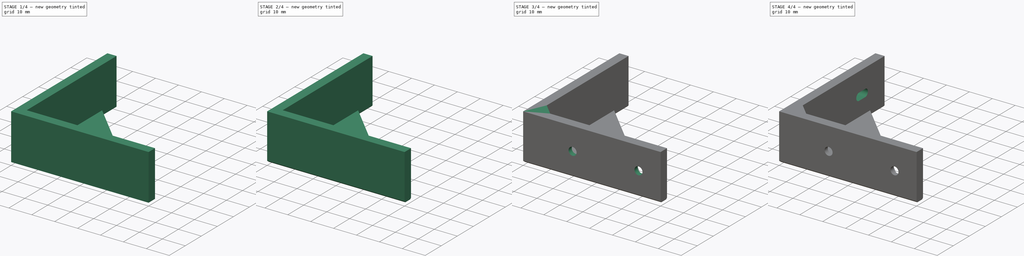
[diagram: build sequence overview — one tinted view per stage of 4, left to right]
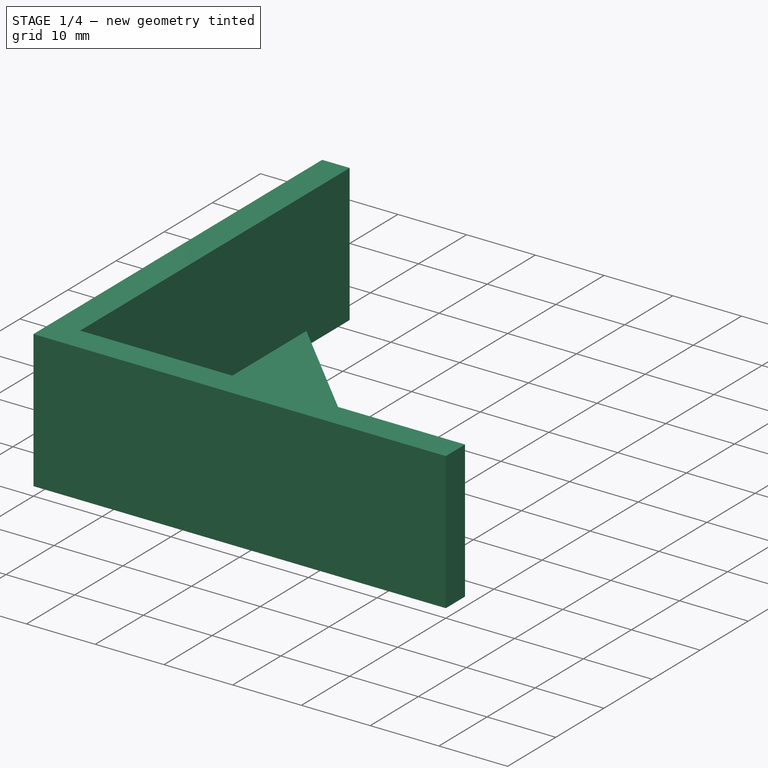
[diagram: stage 1 of 4 — iso view after this stage's code; geometry added in this stage tinted green]
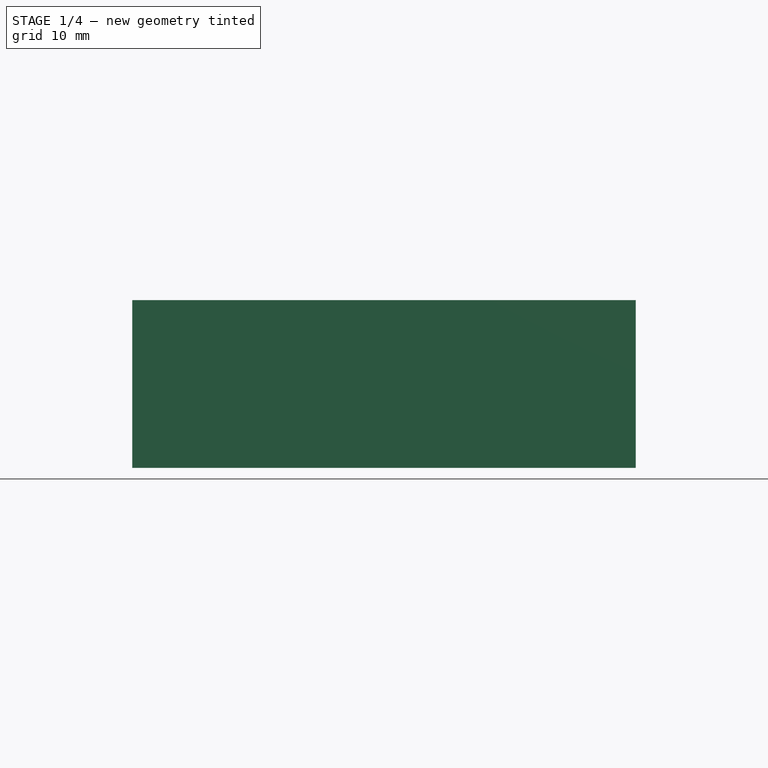
[diagram: stage 1 of 4 — front view after this stage's code; geometry added in this stage tinted green]
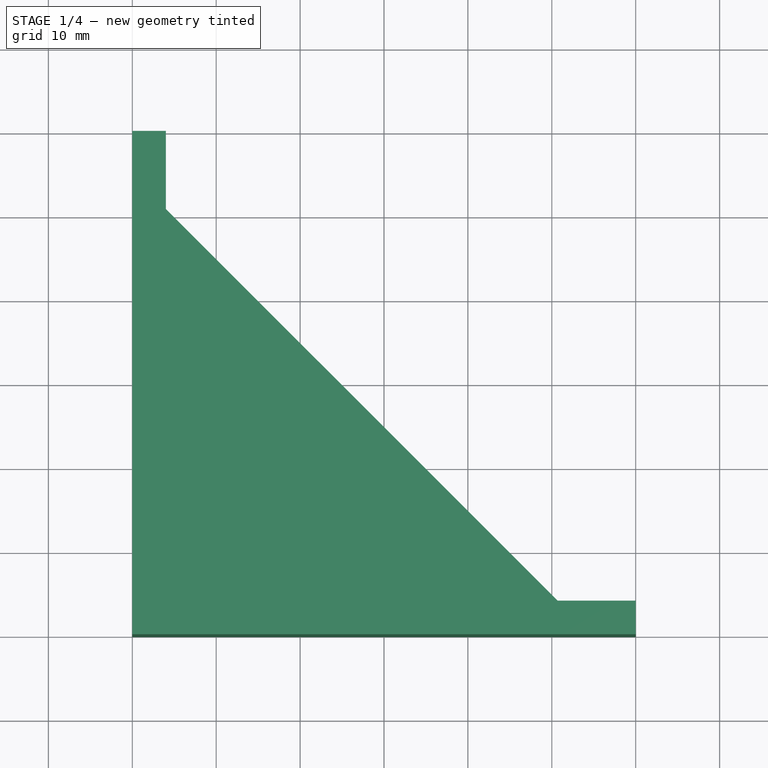
[diagram: stage 1 of 4 — top view after this stage's code; geometry added in this stage tinted green]
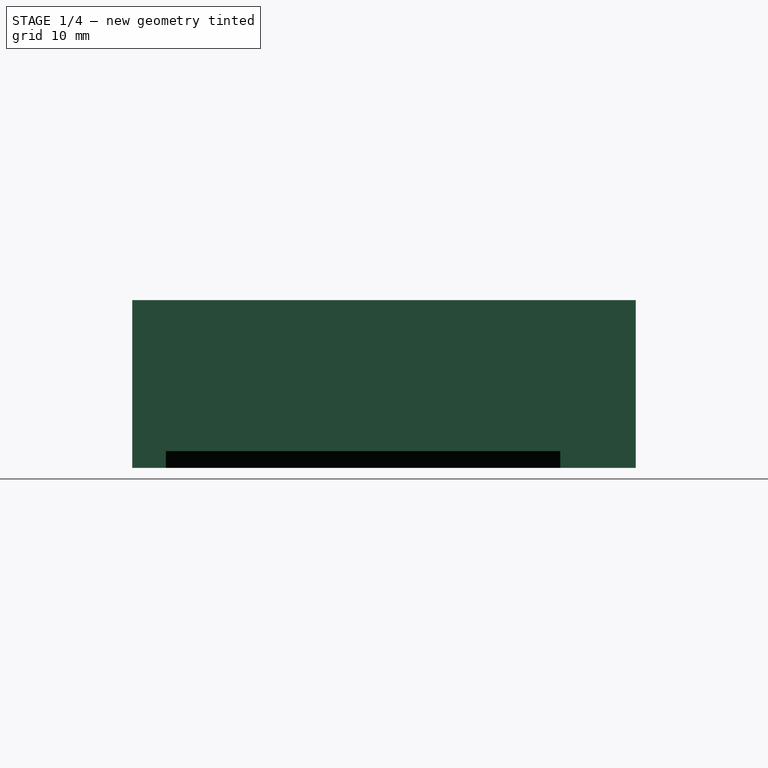
[diagram: stage 1 of 4 — right view after this stage's code; geometry added in this stage tinted green]
FCSTD DOCUMENT  (FreeCAD 0.19R24291 (Git))
Label: z-corner-brace
License: All rights reserved
LicenseURL: http://en.wikipedia.org/wiki/All_rights_reserved
objects: PartDesign::Chamfer×6, Sketcher::SketchObject×4, PartDesign::Pad×2, PartDesign::Hole×1, PartDesign::Pocket×1, PartDesign::Body×1, App::Part×1
note: 25 computed .brp shape members not serialized (recipe doc carries the construction recipe); baked Part::Feature solids carry a one-line shape summary decoded from their .brp

FEATURE [Sketcher::SketchObject] Sketch
  FullyConstrained = true
  MapMode = 5
  Support = -> [XY_Plane001]
  sketch-geometry (6):
    g0: LineSegment StartX=0 StartY=0 StartZ=0 EndX=0 EndY=60 EndZ=0
    g1: LineSegment StartX=0 StartY=0 StartZ=0 EndX=60 EndY=0 EndZ=0
    g2: LineSegment StartX=60 StartY=0 StartZ=0 EndX=60 EndY=4 EndZ=0
    g3: LineSegment StartX=60 StartY=4 StartZ=0 EndX=4 EndY=4 EndZ=0
    g4: LineSegment StartX=4 StartY=4 StartZ=0 EndX=4 EndY=60 EndZ=0
    g5: LineSegment StartX=0 StartY=60 StartZ=0 EndX=4 EndY=60 EndZ=0
  constraints (17):
    c: Coincident(g0,g-1)
    c: PointOnObject(g0,g-2)
    c: Coincident(g1,g0)
    c: PointOnObject(g1,g-1)
    c: Coincident(g2,g1)
    c: Vertical(g2)
    c: Coincident(g3,g2)
    c: Horizontal(g3)
    c: Coincident(g4,g3)
    c: Vertical(g4)
    c: Coincident(g5,g0)
    c: Horizontal(g5)
    c: Distance(g2) = 4
    c: Distance(g5) = 4
    c: Coincident(g4,g5)
    c: Distance(g1) = 60
    c: Distance(g0) = 60
FEATURE [PartDesign::Pad] Pad
  Direction = (1,1,1)
  Length = 20
  Length2 = 100
  Profile = -> Sketch
  Type = 0
FEATURE [Sketcher::SketchObject] Sketch001
  FullyConstrained = true
  MapMode = 5
  Placement = pos=(0,0,0) rot=(1,0,0;3.14159rad)
  Support = -> [Pad]
  sketch-geometry (3):
    g0: LineSegment StartX=0 StartY=0 StartZ=0 EndX=0 EndY=-55 EndZ=0
    g1: LineSegment StartX=0 StartY=0 StartZ=0 EndX=55 EndY=0 EndZ=0
    g2: LineSegment StartX=55 StartY=0 StartZ=0 EndX=0 EndY=-55 EndZ=0
  constraints (8):
    c: Vertical(g0)
    c: Horizontal(g1)
    c: Coincident(g0,g2)
    c: Coincident(g1,g2)
    c: Coincident(g1,g0)
    c: Coincident(g0,g-1)
    c: Distance(g1) = 55
    c: Distance(g0) = 55
FEATURE [PartDesign::Pad] Pad001
  BaseFeature = -> Pad
  Direction = (1,1,1)
  Length = 2
  Length2 = 100
  Profile = -> Sketch001
  Reversed = true
  Type = 0
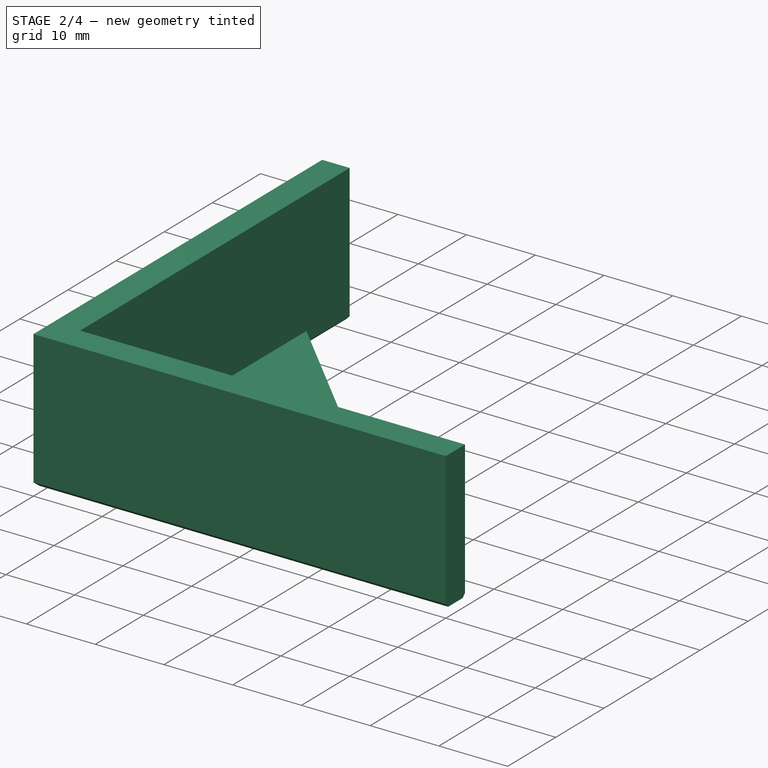
[diagram: stage 2 of 4 — iso view after this stage's code; geometry added in this stage tinted green]
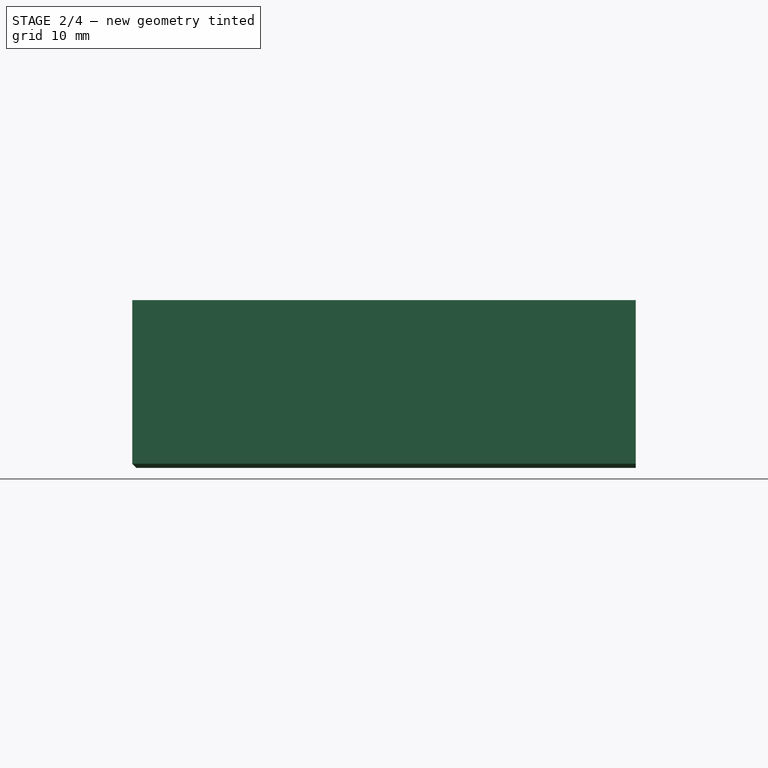
[diagram: stage 2 of 4 — front view after this stage's code; geometry added in this stage tinted green]
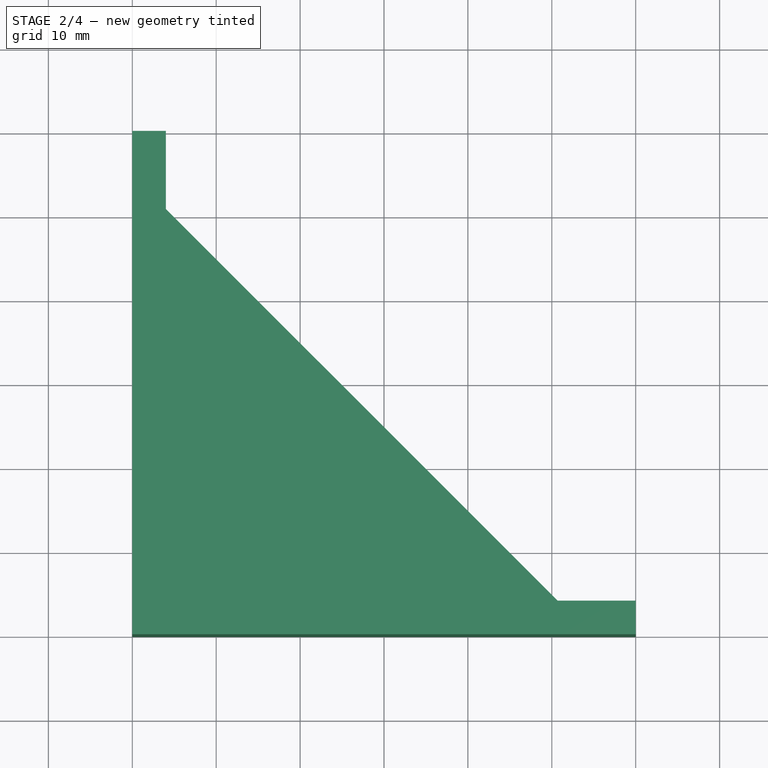
[diagram: stage 2 of 4 — top view after this stage's code; geometry added in this stage tinted green]
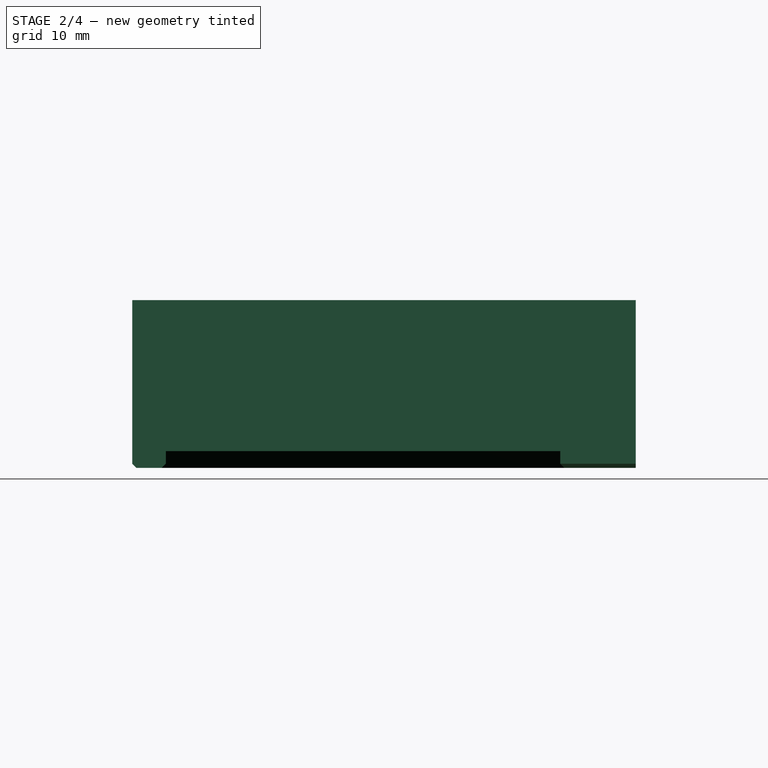
[diagram: stage 2 of 4 — right view after this stage's code; geometry added in this stage tinted green]
FEATURE [PartDesign::Chamfer] Chamfer
  Angle = 45
  Base = -> Pad001 [Edge5,Edge16]
  BaseFeature = -> Pad001
  ChamferType = 0
  FlipDirection = false
  Size = 0.5
  Size2 = 1
  SupportTransform = false
FEATURE [PartDesign::Chamfer] Chamfer001
  Angle = 45
  Base = -> Chamfer [Edge1,Edge13]
  BaseFeature = -> Chamfer
  ChamferType = 0
  FlipDirection = false
  Size = 0.5
  Size2 = 1
  SupportTransform = false
FEATURE [PartDesign::Chamfer] Chamfer002
  Angle = 45
  Base = -> Chamfer001 [Edge31,Edge46]
  BaseFeature = -> Chamfer001
  ChamferType = 0
  FlipDirection = false
  Size = 0.5
  Size2 = 1
  SupportTransform = false
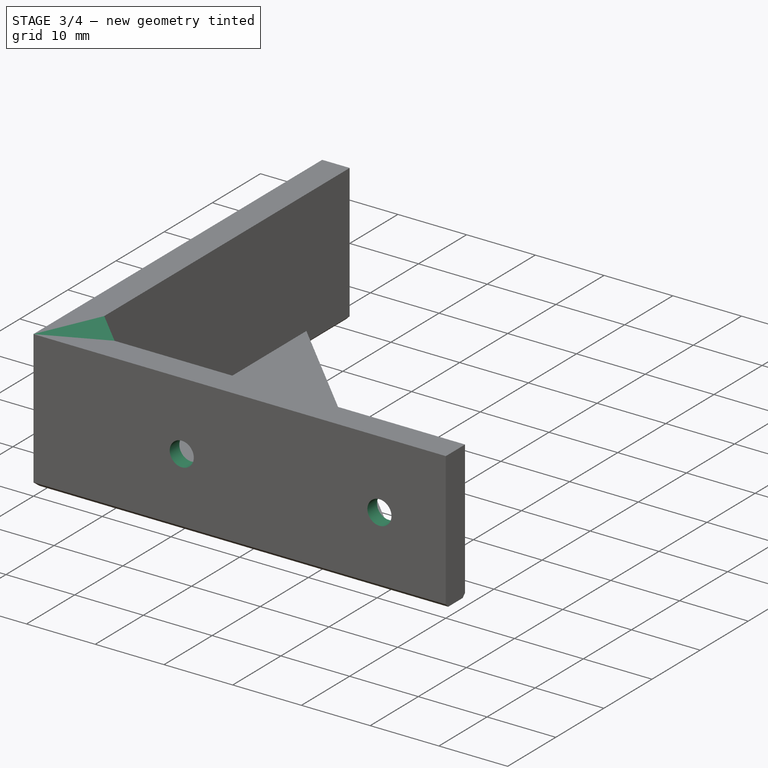
[diagram: stage 3 of 4 — iso view after this stage's code; geometry added in this stage tinted green]
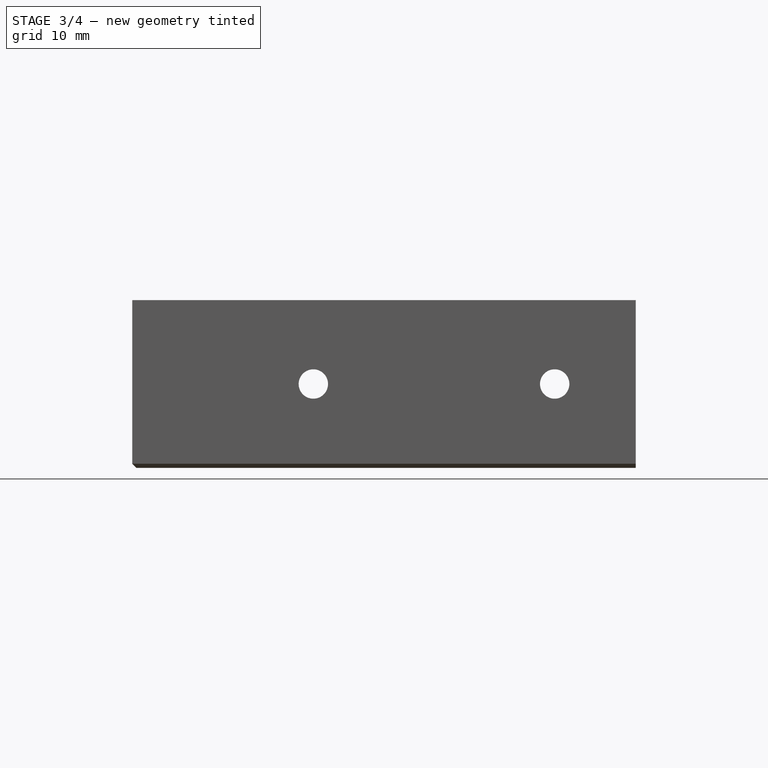
[diagram: stage 3 of 4 — front view after this stage's code; geometry added in this stage tinted green]
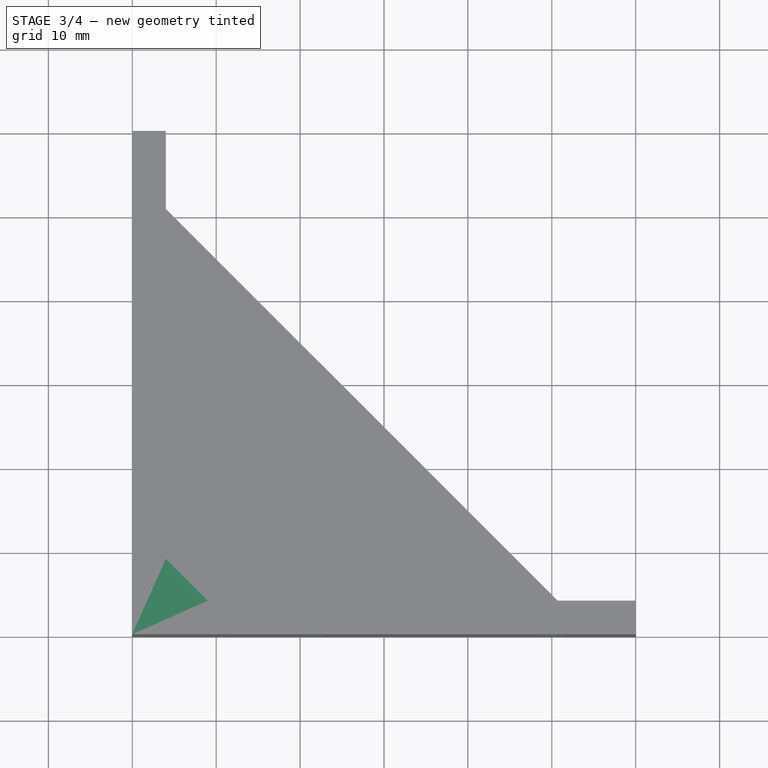
[diagram: stage 3 of 4 — top view after this stage's code; geometry added in this stage tinted green]
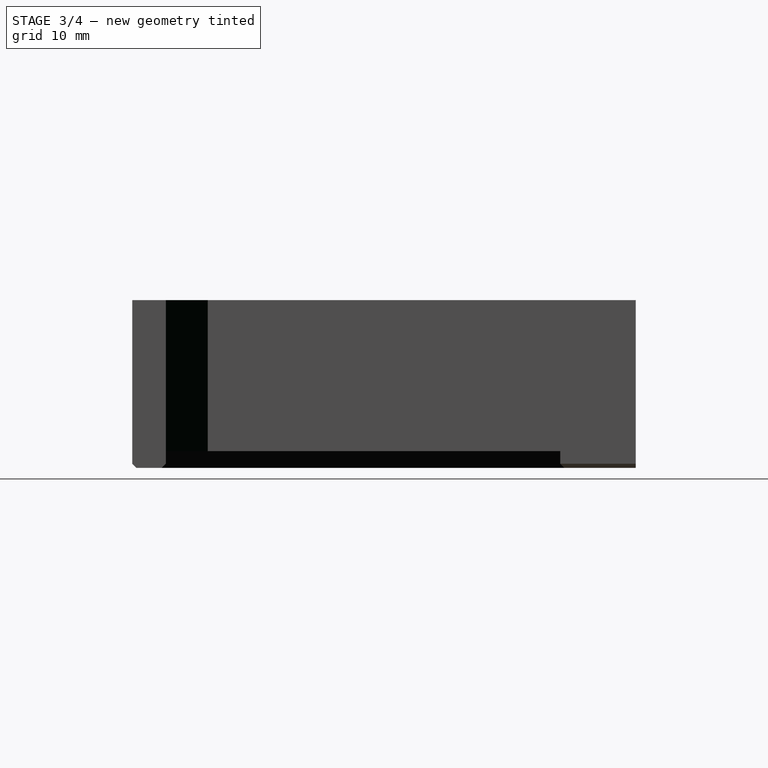
[diagram: stage 3 of 4 — right view after this stage's code; geometry added in this stage tinted green]
FEATURE [PartDesign::Chamfer] Chamfer003
  Angle = 45
  Base = -> Chamfer002 [Edge17]
  BaseFeature = -> Chamfer002
  ChamferType = 0
  FlipDirection = false
  Size = 5
  Size2 = 1
  SupportTransform = false
FEATURE [Sketcher::SketchObject] Sketch002
  ExternalGeometry = -> [Chamfer003]
  FullyConstrained = false
  MapMode = 5
  Placement = pos=(0,4,0) rot=(0,0.707107,0.707107;3.14159rad)
  Support = -> [Chamfer003]
  sketch-geometry (2):
    g0: Circle CenterX=-50.3425 CenterY=10 CenterZ=0 NormalX=0 NormalY=0 NormalZ=1 AngleXU=0 Radius=1.5
    g1: Circle CenterX=-21.5784 CenterY=10 CenterZ=0 NormalX=0 NormalY=0 NormalZ=1 AngleXU=0 Radius=1.5
  constraints (4):
    c: Distance(g0,g-3) = 10
    c: Distance(g1,g-3) = 10
    c: Radius(g0) = 1.5
    c: Equal(g0,g1)
FEATURE [PartDesign::Hole] Hole
  BaseFeature = -> Chamfer003
  Depth = 25
  DepthType = 0
  Diameter = 3.5
  DrillForDepth = false
  DrillPoint = 1
  DrillPointAngle = 118
  HoleCutCountersinkAngle = 90
  HoleCutCustomValues = false
  HoleCutDepth = 0
  HoleCutDiameter = 6.1
  HoleCutType = 0
  ModelActualThread = false
  Profile = -> Sketch002
  Tapered = false
  TaperedAngle = 90
  ThreadAngle = 0
  ThreadClass = 0
  ThreadCutOffInner = 0
  ThreadCutOffOuter = 0
  ThreadDirection = 0
  ThreadFit = 0
  ThreadPitch = 0
  ThreadSize = 0
  ThreadType = 0
  Threaded = false
FEATURE [PartDesign::Chamfer] Chamfer004
  Angle = 45
  Base = -> Hole [Edge34,Edge33]
  BaseFeature = -> Hole
  ChamferType = 0
  FlipDirection = false
  Size = 2
  Size2 = 1
  SupportTransform = false
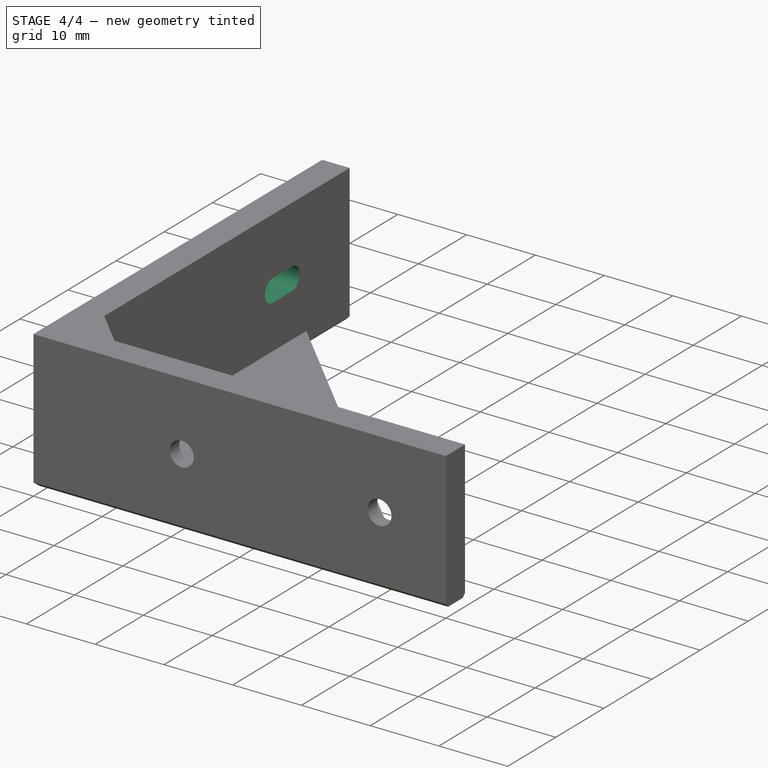
[diagram: stage 4 of 4 — iso view after this stage's code; geometry added in this stage tinted green]
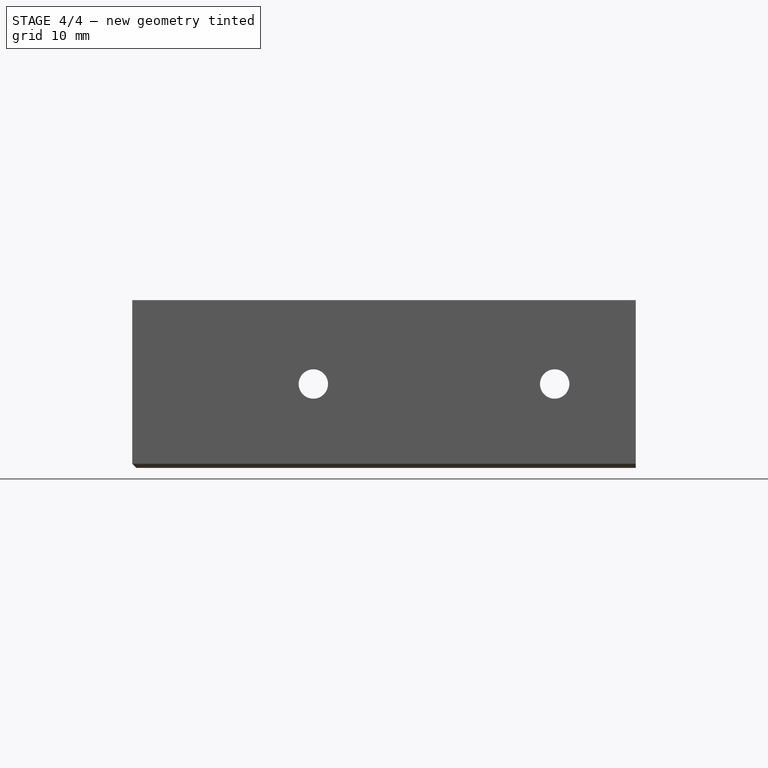
[diagram: stage 4 of 4 — front view after this stage's code; geometry added in this stage tinted green]
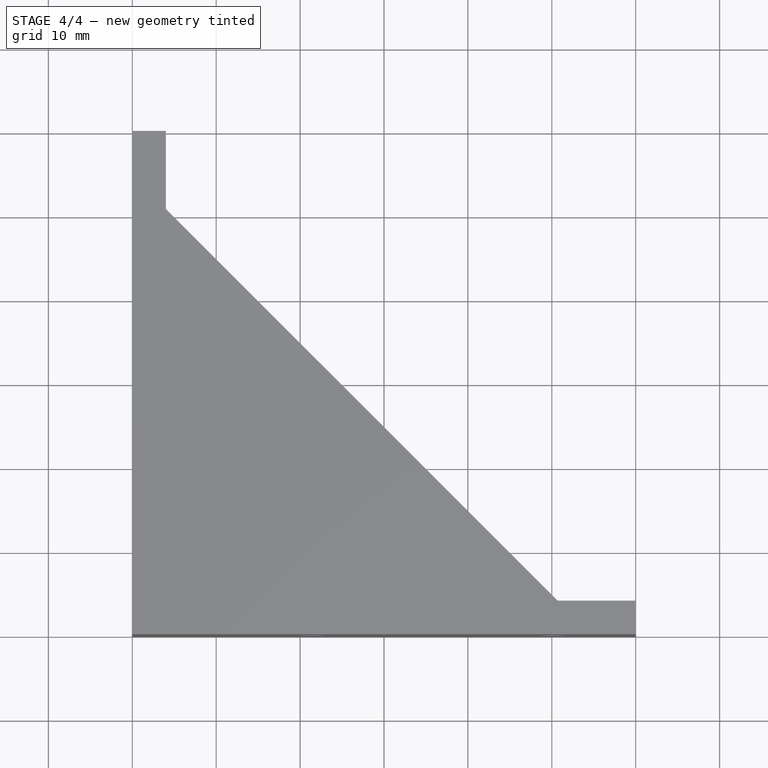
[diagram: stage 4 of 4 — top view after this stage's code; geometry added in this stage tinted green]
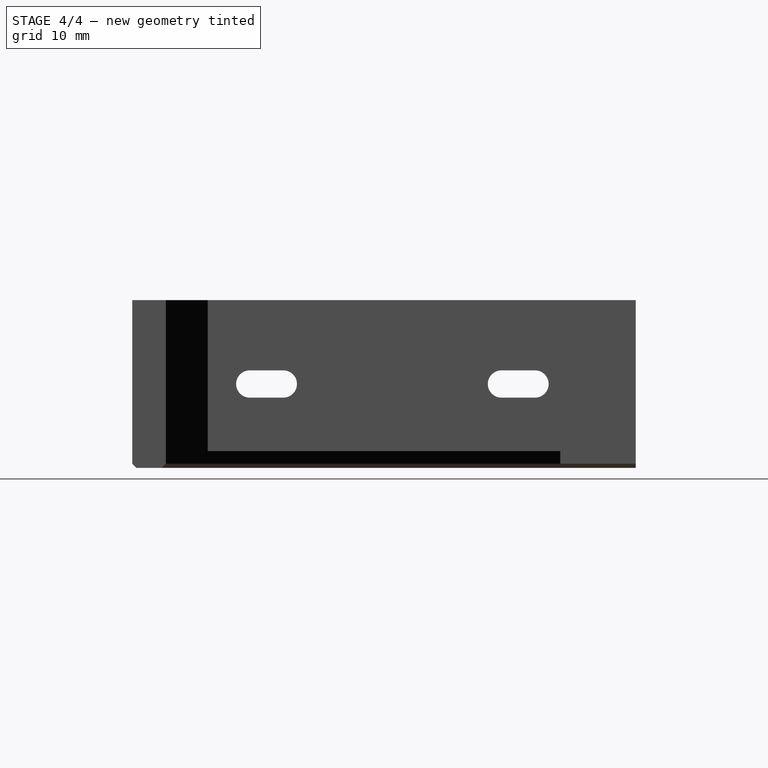
[diagram: stage 4 of 4 — right view after this stage's code; geometry added in this stage tinted green]
FEATURE [Sketcher::SketchObject] Sketch003
  FullyConstrained = true
  MapMode = 5
  Placement = pos=(0,0,0) rot=(0.57735,-0.57735,-0.57735;2.0944rad)
  Support = -> [Chamfer004]
  sketch-geometry (8):
    g0: ArcOfCircle CenterX=-48 CenterY=10 CenterZ=0 NormalX=0 NormalY=0 NormalZ=1 AngleXU=0 Radius=1.625 StartAngle=1.5708 EndAngle=4.71239
    g1: ArcOfCircle CenterX=-44 CenterY=10 CenterZ=0 NormalX=0 NormalY=0 NormalZ=1 AngleXU=0 Radius=1.625 StartAngle=4.71239 EndAngle=7.85398
    g2: LineSegment StartX=-48 StartY=8.375 StartZ=0 EndX=-44 EndY=8.375 EndZ=0
    g3: LineSegment StartX=-48 StartY=11.625 StartZ=0 EndX=-44 EndY=11.625 EndZ=0
    g4: ArcOfCircle CenterX=-18 CenterY=10 CenterZ=0 NormalX=0 NormalY=0 NormalZ=1 AngleXU=0 Radius=1.625 StartAngle=1.5708 EndAngle=4.71239
    g5: ArcOfCircle CenterX=-14 CenterY=10 CenterZ=0 NormalX=0 NormalY=0 NormalZ=1 AngleXU=0 Radius=1.625 StartAngle=4.71239 EndAngle=7.85398
    g6: LineSegment StartX=-18 StartY=8.375 StartZ=0 EndX=-14 EndY=8.375 EndZ=0
    g7: LineSegment StartX=-18 StartY=11.625 StartZ=0 EndX=-14 EndY=11.625 EndZ=0
  constraints (20):
    c: Tangent(g0,g3) = 1.5708
    c: Tangent(g0,g2) = -1.5708
    c: Tangent(g2,g1) = -1.5708
    c: Tangent(g3,g1) = 1.5708
    c: Horizontal(g2)
    c: Equal(g0,g1)
    c: Tangent(g4,g7) = 1.5708
    c: Tangent(g4,g6) = -1.5708
    c: Tangent(g6,g5) = -1.5708
    c: Tangent(g7,g5) = 1.5708
    c: Horizontal(g6)
    c: Equal(g4,g5)
    c: Distance(g1,g1) = 3.25
    c: Distance(g1,g0) = 4
    c: Distance(g0,g-1) = 10
    c: Distance(g5,g-1) = 10
    c: Equal(g5,g1)
    c: Equal(g7,g3)
    c: Distance(g5,g-2) = 14
    c: Distance(g5,g1) = 30
FEATURE [PartDesign::Pocket] Pocket
  BaseFeature = -> Chamfer004
  Length = 5
  Length2 = 100
  Profile = -> Sketch003
  Type = 0
FEATURE [PartDesign::Chamfer] Chamfer005
  Angle = 45
  Base = -> Pocket [Edge31]
  BaseFeature = -> Pocket
  ChamferType = 0
  FlipDirection = false
  Size = 0.5
  Size2 = 1
  SupportTransform = false
FEATURE [PartDesign::Body] Body
  Group = -> [Sketch,Pad,Sketch001,Pad001,Chamfer,Chamfer001,Chamfer002,Chamfer003,Sketch002,Hole,Chamfer004,Sketch003,Pocket,Chamfer005]
  Origin = -> Origin001
  Tip = -> Chamfer005
FEATURE [App::Part] Part
  Group = -> [Body]
  Origin = -> Origin
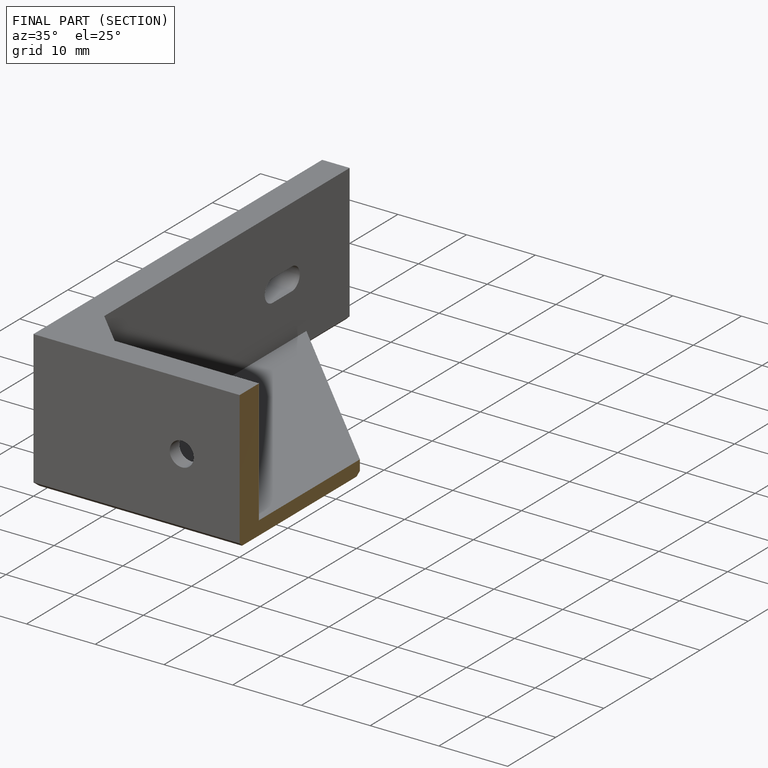
[diagram: finished part — half-section view (interior)]
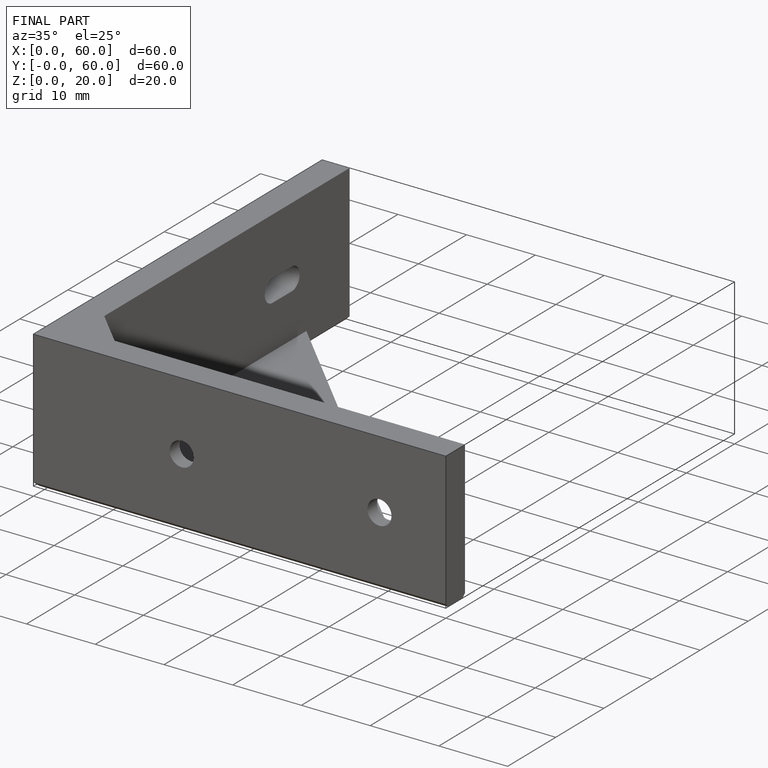
[diagram: finished part — iso view with bounding-box wireframe]
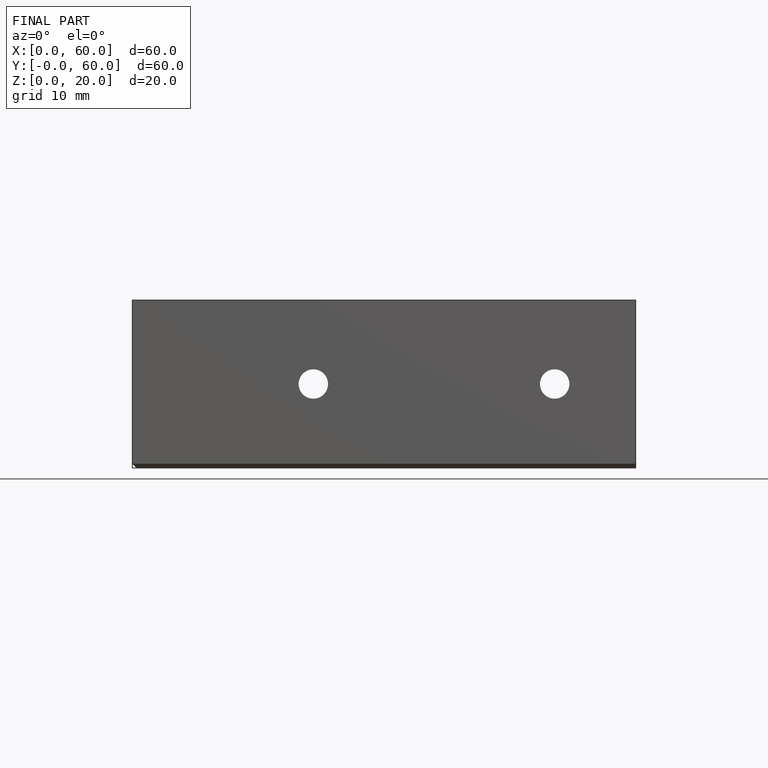
[diagram: finished part — front view with bounding-box wireframe]
